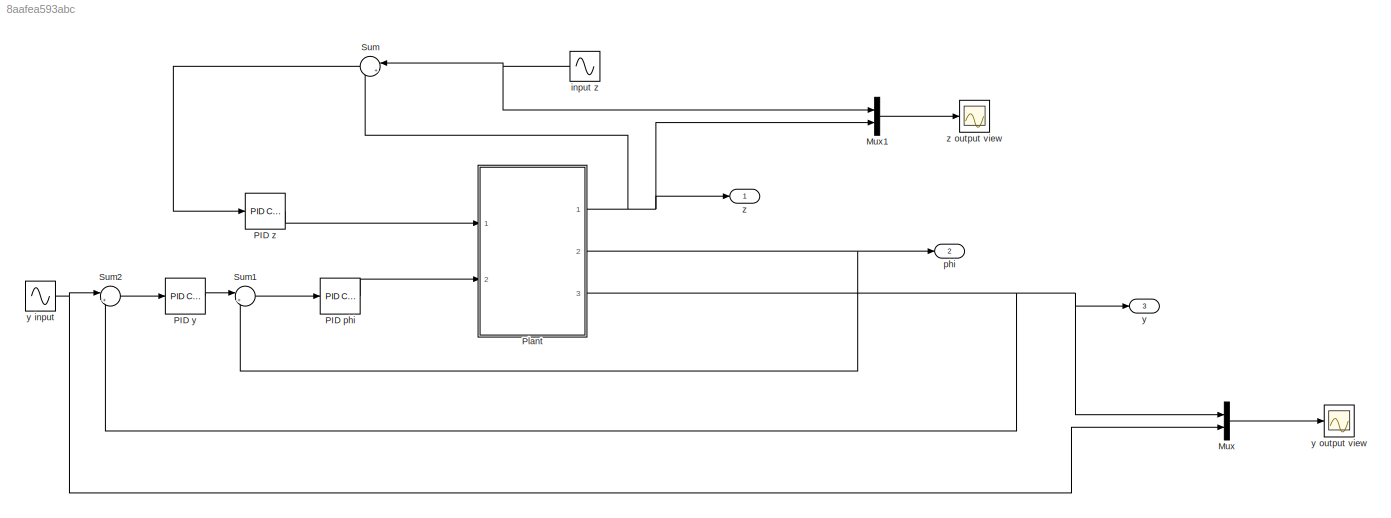
MODEL slx_8aafea593abc
KIND model
CONFIG AbsTol = auto
CONFIG EnableMultiTasking = off
CONFIG FixedStep = auto
CONFIG MaxStep = auto
CONFIG MinStep = auto
CONFIG RelTol = 1e-3
CONFIG SampleTimeConstraint = Unconstrained
CONFIG SolverName = VariableStepAuto
CONFIG StartTime = 0.0
CONFIG StopTime = 10.0
BLOCK [Mux] Mux
  DisplayOption = bar
  Inputs = 2
  Ports = [2, 1]
BLOCK [Mux] Mux1
  DisplayOption = bar
  Inputs = 2
  Ports = [2, 1]
BLOCK [Reference] PID phi  REF=slpidlib/PID Controller
  Ports = [1, 1]
  SourceBlock = slpidlib/PID Controller
  SourceProductBaseCode = SL
  SourceType = PID 1dof
BLOCK [Reference] PID y  REF=slpidlib/PID Controller
  Ports = [1, 1]
  SourceBlock = slpidlib/PID Controller
  SourceProductBaseCode = SL
  SourceType = PID 1dof
BLOCK [Reference] PID z  REF=slpidlib/PID Controller
  Ports = [1, 1]
  SourceBlock = slpidlib/PID Controller
  SourceProductBaseCode = SL
  SourceType = PID 1dof
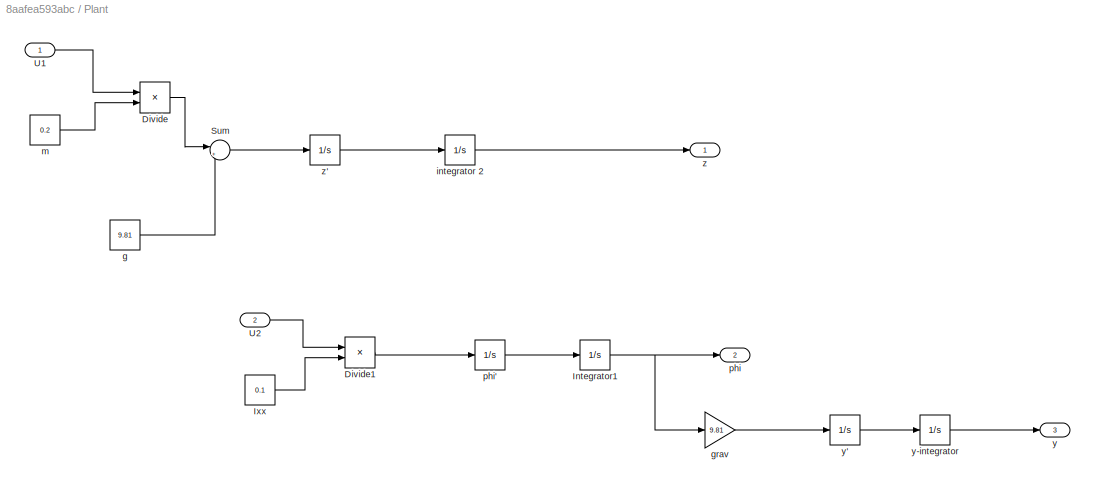
BLOCK [SubSystem] Plant
  Ports = [2, 3]
  RequestExecContextInheritance = off
BLOCK [Product] Plant/Divide
  Inputs = */
  Ports = [2, 1]
BLOCK [Product] Plant/Divide1
  Inputs = */
  Ports = [2, 1]
BLOCK [Integrator] Plant/Integrator1
  Ports = [1, 1]
BLOCK [Constant] Plant/Ixx
  Value = 0.1
BLOCK [Sum] Plant/Sum
  Inputs = |+-
  Ports = [2, 1]
BLOCK [Inport] Plant/U1
BLOCK [Inport] Plant/U2
  Port = 2
BLOCK [Constant] Plant/g
  Value = 9.81
BLOCK [Gain] Plant/grav
  Gain = 9.81
BLOCK [Integrator] Plant/integrator 2
  Ports = [1, 1]
BLOCK [Constant] Plant/m
  Value = 0.2
BLOCK [Outport] Plant/phi
  Port = 2
BLOCK [Integrator] Plant/phi'
  Ports = [1, 1]
BLOCK [Outport] Plant/y
  Port = 3
BLOCK [Integrator] Plant/y'
  Ports = [1, 1]
BLOCK [Integrator] Plant/y-integrator
  Ports = [1, 1]
BLOCK [Outport] Plant/z
BLOCK [Integrator] Plant/z'
  Ports = [1, 1]
BLOCK [Sum] Sum
  Inputs = |+-
  NameLocation = top
  Ports = [2, 1]
BLOCK [Sum] Sum1
  Inputs = |+-
  Ports = [2, 1]
BLOCK [Sum] Sum2
  Inputs = |+-
  Ports = [2, 1]
BLOCK [Sin] input z
  Amplitude = 5
  NameLocation = top
  Ports = [0, 1]
  SampleTime = 0
BLOCK [Outport] phi
  Port = 2
BLOCK [Outport] y
  Port = 3
BLOCK [Sin] y input
  Amplitude = 0.5
  Frequency = 0.5
  Ports = [0, 1]
  SampleTime = 0
BLOCK [Scope] y output view
  Floating = off
  NumInputPorts = 1
  Ports = [1]
  ScopeSpecificationString = Simulink.scopes.TimeScopeBlockCfg('CurrentConfiguration', extmgr.ConfigurationSet(extmgr.Configuration('Core','General UI',true),extmgr.Configuration('Core','Source UI',true),extmgr.Configuration('Sources','WiredSimulink',true),extmgr.Configuration('Visuals','Time Domain',true,'SerializedDisplays',{struct('MinYLimReal','-0.63491','MaxYLimReal','0.62936','YLabelReal','','MinYLimMag','0.00000','MaxY...<+1380ch>
BLOCK [Outport] z
BLOCK [Scope] z output view
  Floating = off
  NumInputPorts = 1
  Ports = [1]
  ScopeSpecificationString = Simulink.scopes.TimeScopeBlockCfg('CurrentConfiguration', extmgr.ConfigurationSet(extmgr.Configuration('Core','General UI',true),extmgr.Configuration('Core','Source UI',true),extmgr.Configuration('Sources','WiredSimulink',true,'DataLoggingVariableName','ScopeData1'),extmgr.Configuration('Visuals','Time Domain',true,'SerializedDisplays',{struct('MinYLimReal','-6.42017','MaxYLimReal','6.39735','YLab...<+1376ch>
LINE Mux1:1 -> z output view:1
LINE Mux:1 -> y output view:1
LINE PID phi:1 -> Plant:2
LINE PID y:1 -> Sum1:1
LINE PID z:1 -> Plant:1
LINE Plant/Divide1:1 -> Plant/phi':1
LINE Plant/Divide:1 -> Plant/Sum:1
NET Plant/Integrator1:1 -> Plant/grav:1, Plant/phi:1
LINE Plant/Ixx:1 -> Plant/Divide1:2
LINE Plant/Sum:1 -> Plant/z':1
LINE Plant/U1:1 -> Plant/Divide:1
LINE Plant/U2:1 -> Plant/Divide1:1
LINE Plant/g:1 -> Plant/Sum:2
LINE Plant/grav:1 -> Plant/y':1
LINE Plant/integrator 2:1 -> Plant/z:1
LINE Plant/m:1 -> Plant/Divide:2
LINE Plant/phi':1 -> Plant/Integrator1:1
LINE Plant/y':1 -> Plant/y-integrator:1
LINE Plant/y-integrator:1 -> Plant/y:1
LINE Plant/z':1 -> Plant/integrator 2:1
NET Plant:1 -> Mux1:2, Sum:2, z:1
NET Plant:2 -> Sum1:2, phi:1
NET Plant:3 -> Mux:1, Sum2:2, y:1
LINE Sum1:1 -> PID phi:1
LINE Sum2:1 -> PID y:1
LINE Sum:1 -> PID z:1
NET input z:1 -> Mux1:1, Sum:1
NET y input:1 -> Mux:2, Sum2:1
note: NET lines group one-source signal fan-out (src -> all destinations, sorted); 1:1 wires keep LINE
